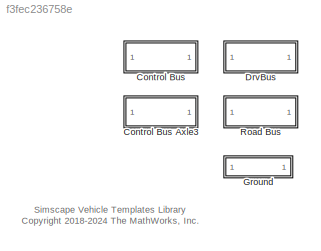
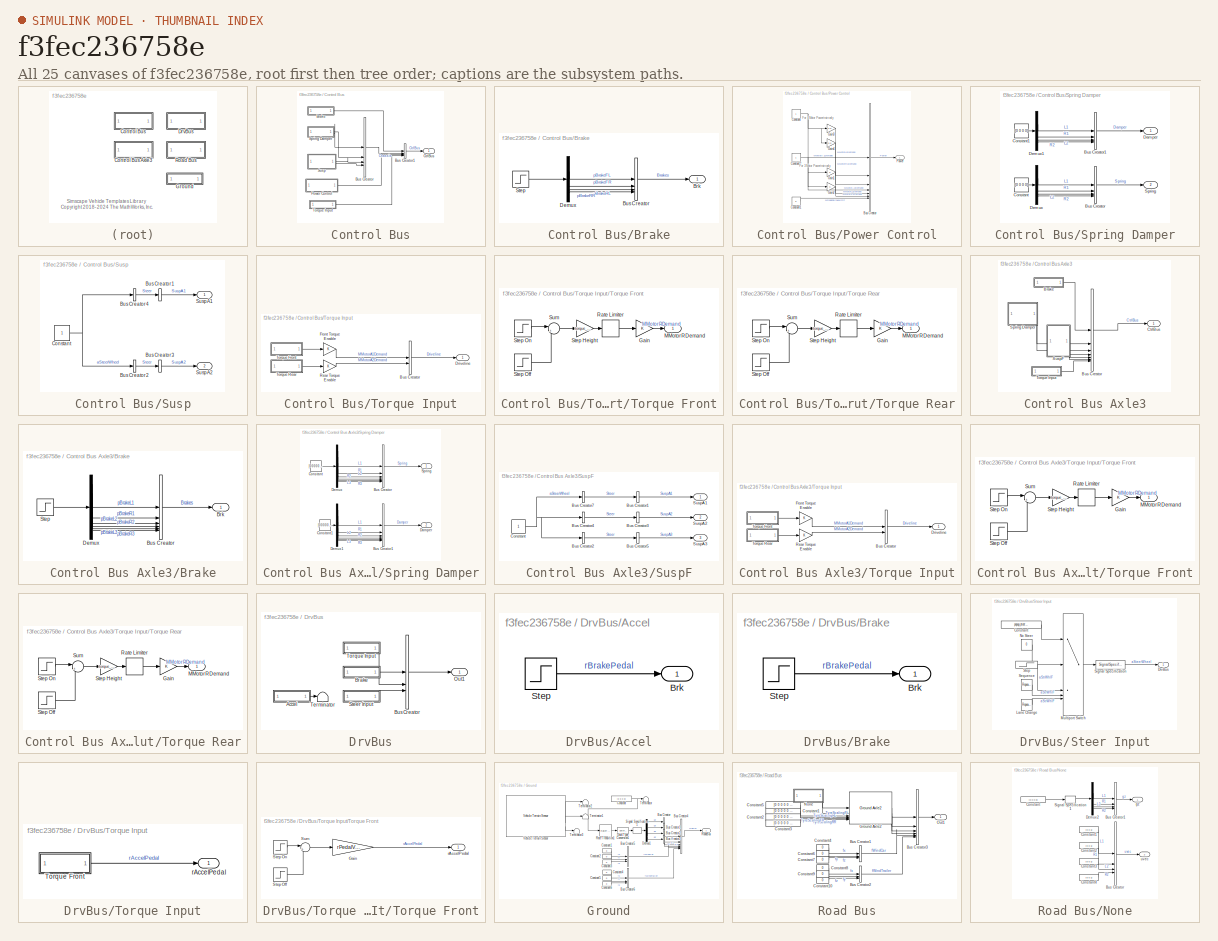
[diagram: thumbnail index - all 25 canvases of the model, root first then tree order]
MODEL slx_f3fec236758e
KIND library
CONFIG AbsTol = auto
CONFIG EnableMultiTasking = off
CONFIG FixedStep = auto
CONFIG MaxStep = auto
CONFIG MinStep = auto
CONFIG RelTol = 1e-3
CONFIG SampleTimeConstraint = Unconstrained
CONFIG SolverName = VariableStepAuto
CONFIG StartTime = 0.0
CONFIG StopTime = 10.0
BLOCK [SubSystem] Control Bus
BLOCK [SubSystem] Control Bus Axle3
BLOCK [SubSystem] Control Bus Axle3/Brake
BLOCK [Outport] Control Bus Axle3/Brake/Brk
  VectorParamsAs1DForOutWhenUnconnected = off
BLOCK [BusCreator] Control Bus Axle3/Brake/Bus Creator
  DisplayOption = bar
  InheritFromInputs = on
  Inputs = 6
BLOCK [Demux] Control Bus Axle3/Brake/Demux
  Outputs = 6
BLOCK [Step] Control Bus Axle3/Brake/Step
  After = [1 1 1 1 1 1]
  SampleTime = 0
  Time = brake_on_time
  ZeroCross = off
BLOCK [BusCreator] Control Bus Axle3/Bus Creator
  DisplayOption = bar
  InheritFromInputs = on
  Inputs = 7
BLOCK [Outport] Control Bus Axle3/CtrlBus
  VectorParamsAs1DForOutWhenUnconnected = off
BLOCK [SubSystem] Control Bus Axle3/Spring Damper
BLOCK [BusCreator] Control Bus Axle3/Spring Damper/Bus Creator
  DisplayOption = bar
  InheritFromInputs = on
  Inputs = 6
BLOCK [BusCreator] Control Bus Axle3/Spring Damper/Bus Creator1
  DisplayOption = bar
  InheritFromInputs = on
  Inputs = 6
BLOCK [Constant] Control Bus Axle3/Spring Damper/Constant
  Value = [0 0 0 0 0 0]
BLOCK [Constant] Control Bus Axle3/Spring Damper/Constant1
  Value = [0 0 0 0 0 0]
BLOCK [Outport] Control Bus Axle3/Spring Damper/Damper
  Port = 2
  VectorParamsAs1DForOutWhenUnconnected = off
BLOCK [Demux] Control Bus Axle3/Spring Damper/Demux
  Outputs = 6
BLOCK [Demux] Control Bus Axle3/Spring Damper/Demux1
  Outputs = 6
BLOCK [Outport] Control Bus Axle3/Spring Damper/Spring
  VectorParamsAs1DForOutWhenUnconnected = off
BLOCK [SubSystem] Control Bus Axle3/SuspF
BLOCK [BusCreator] Control Bus Axle3/SuspF/Bus Creator1
  DisplayOption = bar
  InheritFromInputs = on
  Inputs = 1
BLOCK [BusCreator] Control Bus Axle3/SuspF/Bus Creator2
  DisplayOption = bar
  InheritFromInputs = on
  Inputs = 1
BLOCK [BusCreator] Control Bus Axle3/SuspF/Bus Creator3
  DisplayOption = bar
  InheritFromInputs = on
  Inputs = 1
BLOCK [BusCreator] Control Bus Axle3/SuspF/Bus Creator4
  DisplayOption = bar
  InheritFromInputs = on
  Inputs = 1
BLOCK [BusCreator] Control Bus Axle3/SuspF/Bus Creator5
  DisplayOption = bar
  InheritFromInputs = on
  Inputs = 1
BLOCK [BusCreator] Control Bus Axle3/SuspF/Bus Creator7
  DisplayOption = bar
  InheritFromInputs = on
  Inputs = 1
BLOCK [Constant] Control Bus Axle3/SuspF/Constant
BLOCK [Outport] Control Bus Axle3/SuspF/SuspA1
  VectorParamsAs1DForOutWhenUnconnected = off
BLOCK [Outport] Control Bus Axle3/SuspF/SuspA2
  Port = 2
  VectorParamsAs1DForOutWhenUnconnected = off
BLOCK [Outport] Control Bus Axle3/SuspF/SuspA3
  Port = 3
  VectorParamsAs1DForOutWhenUnconnected = off
BLOCK [SubSystem] Control Bus Axle3/Torque Input
BLOCK [BusCreator] Control Bus Axle3/Torque Input/Bus Creator
  DisplayOption = bar
  InheritFromInputs = on
  Inputs = 2
BLOCK [Outport] Control Bus Axle3/Torque Input/Driveline
  VectorParamsAs1DForOutWhenUnconnected = off
BLOCK [Gain] Control Bus Axle3/Torque Input/Front Torque Enable
BLOCK [Gain] Control Bus Axle3/Torque Input/Rear Torque Enable
BLOCK [SubSystem] Control Bus Axle3/Torque Input/Torque Front
BLOCK [Gain] Control Bus Axle3/Torque Input/Torque Front/Gain
BLOCK [Outport] Control Bus Axle3/Torque Input/Torque Front/MMotorRDemand
  VectorParamsAs1DForOutWhenUnconnected = off
BLOCK [RateLimiter] Control Bus Axle3/Torque Input/Torque Front/Rate Limiter
  FallingSlewLimit = -300
  RisingSlewLimit = 300
  SampleTimeMode = inherited
BLOCK [Gain] Control Bus Axle3/Torque Input/Torque Front/Step Height
  Gain = torque_value
BLOCK [Step] Control Bus Axle3/Torque Input/Torque Front/Step Off
  After = -1
  SampleTime = 0
  Time = off_time
  ZeroCross = off
BLOCK [Step] Control Bus Axle3/Torque Input/Torque Front/Step On
  SampleTime = 0
  Time = on_time
  ZeroCross = off
BLOCK [Sum] Control Bus Axle3/Torque Input/Torque Front/Sum
  Inputs = |++
BLOCK [SubSystem] Control Bus Axle3/Torque Input/Torque Rear
BLOCK [Gain] Control Bus Axle3/Torque Input/Torque Rear/Gain
BLOCK [Outport] Control Bus Axle3/Torque Input/Torque Rear/MMotorRDemand
  VectorParamsAs1DForOutWhenUnconnected = off
BLOCK [RateLimiter] Control Bus Axle3/Torque Input/Torque Rear/Rate Limiter
  FallingSlewLimit = -300
  RisingSlewLimit = 300
  SampleTimeMode = inherited
BLOCK [Gain] Control Bus Axle3/Torque Input/Torque Rear/Step Height
  Gain = torque_value
BLOCK [Step] Control Bus Axle3/Torque Input/Torque Rear/Step Off
  After = -1
  SampleTime = 0
  Time = off_time
  ZeroCross = off
BLOCK [Step] Control Bus Axle3/Torque Input/Torque Rear/Step On
  SampleTime = 0
  Time = on_time
  ZeroCross = off
BLOCK [Sum] Control Bus Axle3/Torque Input/Torque Rear/Sum
  Inputs = |++
BLOCK [SubSystem] Control Bus/Brake
BLOCK [Outport] Control Bus/Brake/Brk
  VectorParamsAs1DForOutWhenUnconnected = off
BLOCK [BusCreator] Control Bus/Brake/Bus Creator
  DisplayOption = bar
  InheritFromInputs = on
  Inputs = 4
BLOCK [Demux] Control Bus/Brake/Demux
BLOCK [Step] Control Bus/Brake/Step
  After = [1 1 1 1]
  SampleTime = 0
  Time = brake_on_time
  ZeroCross = off
BLOCK [BusCreator] Control Bus/Bus Creator
  DisplayOption = bar
  InheritFromInputs = on
  Inputs = 4
BLOCK [BusCreator] Control Bus/Bus Creator1
  DisplayOption = bar
  InheritFromInputs = on
  Inputs = 4
BLOCK [Outport] Control Bus/CtrlBus
  VectorParamsAs1DForOutWhenUnconnected = off
BLOCK [SubSystem] Control Bus/Power Control
BLOCK [BusCreator] Control Bus/Power Control/Bus Creator
  DisplayOption = bar
  InheritFromInputs = on
  Inputs = 7
BLOCK [Constant] Control Bus/Power Control/Constant
BLOCK [Constant] Control Bus/Power Control/Constant1
  Value = 0
BLOCK [Constant] Control Bus/Power Control/Constant2
BLOCK [Gain] Control Bus/Power Control/Gain1
BLOCK [Gain] Control Bus/Power Control/Gain2
BLOCK [Gain] Control Bus/Power Control/Gain3
  Gain = 0.5
BLOCK [Gain] Control Bus/Power Control/Gain4
  Gain = 0.5
BLOCK [Outport] Control Bus/Power Control/Power
  VectorParamsAs1DForOutWhenUnconnected = off
BLOCK [SubSystem] Control Bus/Spring Damper
BLOCK [BusCreator] Control Bus/Spring Damper/Bus Creator
  DisplayOption = bar
  InheritFromInputs = on
  Inputs = 4
BLOCK [BusCreator] Control Bus/Spring Damper/Bus Creator1
  DisplayOption = bar
  InheritFromInputs = on
  Inputs = 4
BLOCK [Constant] Control Bus/Spring Damper/Constant
  Value = [0 0 0 0]
BLOCK [Constant] Control Bus/Spring Damper/Constant1
  Value = [0 0 0 0]
BLOCK [Outport] Control Bus/Spring Damper/Damper
  VectorParamsAs1DForOutWhenUnconnected = off
BLOCK [Demux] Control Bus/Spring Damper/Demux
BLOCK [Demux] Control Bus/Spring Damper/Demux1
BLOCK [Outport] Control Bus/Spring Damper/Spring
  Port = 2
  VectorParamsAs1DForOutWhenUnconnected = off
BLOCK [SubSystem] Control Bus/Susp
BLOCK [BusCreator] Control Bus/Susp/Bus Creator1
  DisplayOption = bar
  InheritFromInputs = on
  Inputs = 1
BLOCK [BusCreator] Control Bus/Susp/Bus Creator2
  DisplayOption = bar
  InheritFromInputs = on
  Inputs = 1
BLOCK [BusCreator] Control Bus/Susp/Bus Creator3
  DisplayOption = bar
  InheritFromInputs = on
  Inputs = 1
BLOCK [BusCreator] Control Bus/Susp/Bus Creator4
  DisplayOption = bar
  InheritFromInputs = on
  Inputs = 1
BLOCK [Constant] Control Bus/Susp/Constant
BLOCK [Outport] Control Bus/Susp/SuspA1
  VectorParamsAs1DForOutWhenUnconnected = off
BLOCK [Outport] Control Bus/Susp/SuspA2
  Port = 2
  VectorParamsAs1DForOutWhenUnconnected = off
BLOCK [SubSystem] Control Bus/Torque Input
BLOCK [BusCreator] Control Bus/Torque Input/Bus Creator
  DisplayOption = bar
  InheritFromInputs = on
  Inputs = 2
BLOCK [Outport] Control Bus/Torque Input/Driveline
  VectorParamsAs1DForOutWhenUnconnected = off
BLOCK [Gain] Control Bus/Torque Input/Front Torque Enable
BLOCK [Gain] Control Bus/Torque Input/Rear Torque Enable
BLOCK [SubSystem] Control Bus/Torque Input/Torque Front
BLOCK [Gain] Control Bus/Torque Input/Torque Front/Gain
BLOCK [Outport] Control Bus/Torque Input/Torque Front/MMotorRDemand
  VectorParamsAs1DForOutWhenUnconnected = off
BLOCK [RateLimiter] Control Bus/Torque Input/Torque Front/Rate Limiter
  FallingSlewLimit = -300
  RisingSlewLimit = 300
  SampleTimeMode = inherited
BLOCK [Gain] Control Bus/Torque Input/Torque Front/Step Height
  Gain = torque_value
BLOCK [Step] Control Bus/Torque Input/Torque Front/Step Off
  After = -1
  SampleTime = 0
  Time = off_time
  ZeroCross = off
BLOCK [Step] Control Bus/Torque Input/Torque Front/Step On
  SampleTime = 0
  Time = on_time
  ZeroCross = off
BLOCK [Sum] Control Bus/Torque Input/Torque Front/Sum
  Inputs = |++
BLOCK [SubSystem] Control Bus/Torque Input/Torque Rear
BLOCK [Gain] Control Bus/Torque Input/Torque Rear/Gain
BLOCK [Outport] Control Bus/Torque Input/Torque Rear/MMotorRDemand
  VectorParamsAs1DForOutWhenUnconnected = off
BLOCK [RateLimiter] Control Bus/Torque Input/Torque Rear/Rate Limiter
  FallingSlewLimit = -300
  RisingSlewLimit = 300
  SampleTimeMode = inherited
BLOCK [Gain] Control Bus/Torque Input/Torque Rear/Step Height
  Gain = torque_value
BLOCK [Step] Control Bus/Torque Input/Torque Rear/Step Off
  After = -1
  SampleTime = 0
  Time = off_time
  ZeroCross = off
BLOCK [Step] Control Bus/Torque Input/Torque Rear/Step On
  SampleTime = 0
  Time = on_time
  ZeroCross = off
BLOCK [Sum] Control Bus/Torque Input/Torque Rear/Sum
  Inputs = |++
BLOCK [SubSystem] DrvBus
BLOCK [SubSystem] DrvBus/Accel
BLOCK [Outport] DrvBus/Accel/Brk
  VectorParamsAs1DForOutWhenUnconnected = off
BLOCK [Step] DrvBus/Accel/Step
  After = [1 1 1 1]
  SampleTime = 0
  Time = brake_on_time
  ZeroCross = off
BLOCK [SubSystem] DrvBus/Brake
BLOCK [Outport] DrvBus/Brake/Brk
  VectorParamsAs1DForOutWhenUnconnected = off
BLOCK [Step] DrvBus/Brake/Step
  SampleTime = 0
  Time = brake_on_time
  ZeroCross = off
BLOCK [BusCreator] DrvBus/Bus Creator
  DisplayOption = bar
  InheritFromInputs = on
  Inputs = 3
BLOCK [Outport] DrvBus/Out1
  VectorParamsAs1DForOutWhenUnconnected = off
BLOCK [SubSystem] DrvBus/Steer Input
BLOCK [Constant] DrvBus/Steer Input/Constant
  Value = popup_steer_input
BLOCK [Outport] DrvBus/Steer Input/DrvBus
  VectorParamsAs1DForOutWhenUnconnected = off
BLOCK [Reference] DrvBus/Steer Input/Lane Change  REF=simulink/Sources/Repeating
Sequence
  SourceBlock = simulink/Sources/Repeating\nSequence
  SourceType = Repeating table
BLOCK [MultiPortSwitch] DrvBus/Steer Input/Multiport Switch
  InputSameDT = off
  Inputs = 4
  SaturateOnIntegerOverflow = off
BLOCK [Constant] DrvBus/Steer Input/No Steer
  Value = 0
BLOCK [Reference] DrvBus/Steer Input/Sequence  REF=simulink/Sources/Repeating
Sequence
  SourceBlock = simulink/Sources/Repeating\nSequence
  SourceType = Repeating table
BLOCK [SignalSpecification] DrvBus/Steer Input/Signal Specification
  Unit = rad
BLOCK [Step] DrvBus/Steer Input/Step
  After = 5*pi/180
  AttributesFormatString = %<After> @ %<Time> sec
  SampleTime = 0
  Time = 5
  ZeroCross = off
BLOCK [Terminator] DrvBus/Terminator
BLOCK [SubSystem] DrvBus/Torque Input
BLOCK [SubSystem] DrvBus/Torque Input/Torque Front
BLOCK [Gain] DrvBus/Torque Input/Torque Front/Gain
  Gain = rPedalValue
BLOCK [Step] DrvBus/Torque Input/Torque Front/Step Off
  After = -1
  SampleTime = 0
  Time = off_time
  ZeroCross = off
BLOCK [Step] DrvBus/Torque Input/Torque Front/Step On
  SampleTime = 0
  Time = on_time
  ZeroCross = off
BLOCK [Sum] DrvBus/Torque Input/Torque Front/Sum
  Inputs = |++
BLOCK [Outport] DrvBus/Torque Input/Torque Front/rAccelPedal
  VectorParamsAs1DForOutWhenUnconnected = off
BLOCK [Outport] DrvBus/Torque Input/rAccelPedal
  VectorParamsAs1DForOutWhenUnconnected = off
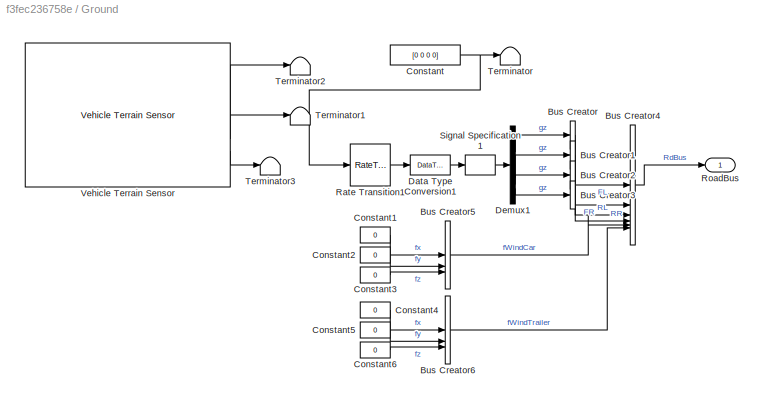
BLOCK [SubSystem] Ground
BLOCK [BusCreator] Ground/Bus Creator
  DisplayOption = bar
  InheritFromInputs = on
  Inputs = 1
BLOCK [BusCreator] Ground/Bus Creator1
  DisplayOption = bar
  InheritFromInputs = on
  Inputs = 1
BLOCK [BusCreator] Ground/Bus Creator2
  DisplayOption = bar
  InheritFromInputs = on
  Inputs = 1
BLOCK [BusCreator] Ground/Bus Creator3
  DisplayOption = bar
  InheritFromInputs = on
  Inputs = 1
BLOCK [BusCreator] Ground/Bus Creator4
  DisplayOption = bar
  InheritFromInputs = on
  Inputs = 6
BLOCK [BusCreator] Ground/Bus Creator5
  DisplayOption = bar
  InheritFromInputs = on
  Inputs = 3
BLOCK [BusCreator] Ground/Bus Creator6
  DisplayOption = bar
  InheritFromInputs = on
  Inputs = 3
BLOCK [Constant] Ground/Constant
  Value = [0 0 0 0]
BLOCK [Constant] Ground/Constant1
  Value = 0
BLOCK [Constant] Ground/Constant2
  Value = 0
BLOCK [Constant] Ground/Constant3
  Value = 0
BLOCK [Constant] Ground/Constant4
  Value = 0
BLOCK [Constant] Ground/Constant5
  Value = 0
BLOCK [Constant] Ground/Constant6
  Value = 0
BLOCK [DataTypeConversion] Ground/Data Type Conversion1
  RndMeth = Floor
  SaturateOnIntegerOverflow = off
BLOCK [Demux] Ground/Demux1
BLOCK [RateTransition] Ground/Rate Transition1
BLOCK [Outport] Ground/RoadBus
  VectorParamsAs1DForOutWhenUnconnected = off
BLOCK [SignalSpecification] Ground/Signal Specification1
  Unit = m
BLOCK [Terminator] Ground/Terminator
BLOCK [Terminator] Ground/Terminator1
  Commented = on
BLOCK [Terminator] Ground/Terminator2
  Commented = on
BLOCK [Terminator] Ground/Terminator3
  Commented = on
BLOCK [Reference] Ground/Vehicle Terrain Sensor  REF=sim3dlib/Vehicle Terrain Sensor
  Commented = on
  SourceBlock = sim3dlib/Vehicle Terrain Sensor
  SourceType = Vehicle Terrain Sensor
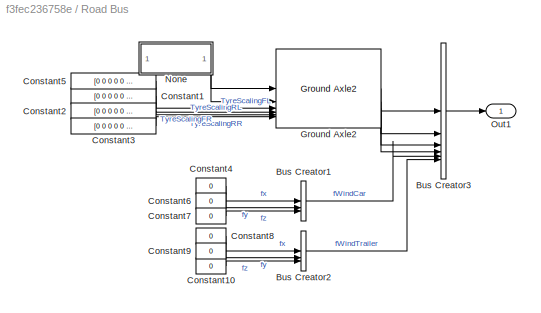
BLOCK [SubSystem] Road Bus
BLOCK [BusCreator] Road Bus/Bus Creator1
  DisplayOption = bar
  InheritFromInputs = on
  Inputs = 3
BLOCK [BusCreator] Road Bus/Bus Creator2
  DisplayOption = bar
  InheritFromInputs = on
  Inputs = 3
BLOCK [BusCreator] Road Bus/Bus Creator3
  DisplayOption = bar
  InheritFromInputs = on
  Inputs = 6
BLOCK [Constant] Road Bus/Constant1
  Value = [0 0 0 0 0 0 0 0]
BLOCK [Constant] Road Bus/Constant10
  Value = 0
BLOCK [Constant] Road Bus/Constant2
  Value = [0 0 0 0 0 0 0 0]
BLOCK [Constant] Road Bus/Constant3
  Value = [0 0 0 0 0 0 0 0]
BLOCK [Constant] Road Bus/Constant4
  Value = 0
BLOCK [Constant] Road Bus/Constant5
  Value = [0 0 0 0 0 0 0 0]
BLOCK [Constant] Road Bus/Constant6
  Value = 0
BLOCK [Constant] Road Bus/Constant7
  Value = 0
BLOCK [Constant] Road Bus/Constant8
  Value = 0
BLOCK [Constant] Road Bus/Constant9
  Value = 0
BLOCK [Reference] Road Bus/Ground Axle2  REF=Tire_Utilities/Ground Axle2
  SourceBlock = Tire_Utilities/Ground Axle2
  SourceType = SubSystem
BLOCK [SubSystem] Road Bus/None
  NameLocation = top
  VariantControl = None
BLOCK [BusCreator] Road Bus/None/Bus Creator
  DisplayOption = bar
  InheritFromInputs = on
  Inputs = 4
BLOCK [BusCreator] Road Bus/None/Bus Creator1
  DisplayOption = bar
  InheritFromInputs = on
  Inputs = 4
BLOCK [Constant] Road Bus/None/Constant
  Value = [0 0 0 0]
BLOCK [Constant] Road Bus/None/Constant1
  Value = [0 0 1]
BLOCK [Constant] Road Bus/None/Constant2
  Value = [0 0 1]
BLOCK [Constant] Road Bus/None/Constant3
  Value = [0 0 1]
BLOCK [Constant] Road Bus/None/Constant4
  Value = [0 0 1]
BLOCK [Demux] Road Bus/None/Demux2
BLOCK [SignalSpecification] Road Bus/None/Signal Specification1
  Unit = m
BLOCK [Outport] Road Bus/None/gz
  VectorParamsAs1DForOutWhenUnconnected = off
BLOCK [Outport] Road Bus/None/uvec
  Port = 2
  VectorParamsAs1DForOutWhenUnconnected = off
BLOCK [Outport] Road Bus/Out1
  VectorParamsAs1DForOutWhenUnconnected = off
ANNOTATION (root): Simscape Vehicle Templates Library <copyright redacted>
ANNOTATION Control Bus/Power Control: For 3 Motor Powertrain only
ANNOTATION Control Bus/Power Control: For 4 Motor Powertrain only
LINE Control Bus Axle3/Brake/Bus Creator:1 -> Control Bus Axle3/Brake/Brk:1
LINE Control Bus Axle3/Brake/Demux:1 -> Control Bus Axle3/Brake/Bus Creator:1
LINE Control Bus Axle3/Brake/Demux:2 -> Control Bus Axle3/Brake/Bus Creator:2
LINE Control Bus Axle3/Brake/Demux:3 -> Control Bus Axle3/Brake/Bus Creator:3
LINE Control Bus Axle3/Brake/Demux:4 -> Control Bus Axle3/Brake/Bus Creator:4
LINE Control Bus Axle3/Brake/Demux:5 -> Control Bus Axle3/Brake/Bus Creator:5
LINE Control Bus Axle3/Brake/Demux:6 -> Control Bus Axle3/Brake/Bus Creator:6
LINE Control Bus Axle3/Brake/Step:1 -> Control Bus Axle3/Brake/Demux:1
LINE Control Bus Axle3/Brake:1 -> Control Bus Axle3/Bus Creator:1
LINE Control Bus Axle3/Bus Creator:1 -> Control Bus Axle3/CtrlBus:1
LINE Control Bus Axle3/Spring Damper/Bus Creator1:1 -> Control Bus Axle3/Spring Damper/Damper:1
LINE Control Bus Axle3/Spring Damper/Bus Creator:1 -> Control Bus Axle3/Spring Damper/Spring:1
LINE Control Bus Axle3/Spring Damper/Constant1:1 -> Control Bus Axle3/Spring Damper/Demux1:1
LINE Control Bus Axle3/Spring Damper/Constant:1 -> Control Bus Axle3/Spring Damper/Demux:1
LINE Control Bus Axle3/Spring Damper/Demux1:1 -> Control Bus Axle3/Spring Damper/Bus Creator1:1
LINE Control Bus Axle3/Spring Damper/Demux1:2 -> Control Bus Axle3/Spring Damper/Bus Creator1:2
LINE Control Bus Axle3/Spring Damper/Demux1:3 -> Control Bus Axle3/Spring Damper/Bus Creator1:3
LINE Control Bus Axle3/Spring Damper/Demux1:4 -> Control Bus Axle3/Spring Damper/Bus Creator1:4
LINE Control Bus Axle3/Spring Damper/Demux1:5 -> Control Bus Axle3/Spring Damper/Bus Creator1:5
LINE Control Bus Axle3/Spring Damper/Demux1:6 -> Control Bus Axle3/Spring Damper/Bus Creator1:6
LINE Control Bus Axle3/Spring Damper/Demux:1 -> Control Bus Axle3/Spring Damper/Bus Creator:1
LINE Control Bus Axle3/Spring Damper/Demux:2 -> Control Bus Axle3/Spring Damper/Bus Creator:2
LINE Control Bus Axle3/Spring Damper/Demux:3 -> Control Bus Axle3/Spring Damper/Bus Creator:3
LINE Control Bus Axle3/Spring Damper/Demux:4 -> Control Bus Axle3/Spring Damper/Bus Creator:4
LINE Control Bus Axle3/Spring Damper/Demux:5 -> Control Bus Axle3/Spring Damper/Bus Creator:5
LINE Control Bus Axle3/Spring Damper/Demux:6 -> Control Bus Axle3/Spring Damper/Bus Creator:6
LINE Control Bus Axle3/Spring Damper:1 -> Control Bus Axle3/Bus Creator:2
LINE Control Bus Axle3/Spring Damper:2 -> Control Bus Axle3/Bus Creator:3
LINE Control Bus Axle3/SuspF/Bus Creator1:1 -> Control Bus Axle3/SuspF/SuspA1:1
LINE Control Bus Axle3/SuspF/Bus Creator2:1 -> Control Bus Axle3/SuspF/Bus Creator5:1
LINE Control Bus Axle3/SuspF/Bus Creator3:1 -> Control Bus Axle3/SuspF/SuspA2:1
LINE Control Bus Axle3/SuspF/Bus Creator4:1 -> Control Bus Axle3/SuspF/Bus Creator3:1
LINE Control Bus Axle3/SuspF/Bus Creator5:1 -> Control Bus Axle3/SuspF/SuspA3:1
LINE Control Bus Axle3/SuspF/Bus Creator7:1 -> Control Bus Axle3/SuspF/Bus Creator1:1
NET Control Bus Axle3/SuspF/Constant:1 -> Control Bus Axle3/SuspF/Bus Creator2:1, Control Bus Axle3/SuspF/Bus Creator4:1, Control Bus Axle3/SuspF/Bus Creator7:1
LINE Control Bus Axle3/SuspF:1 -> Control Bus Axle3/Bus Creator:4
LINE Control Bus Axle3/SuspF:2 -> Control Bus Axle3/Bus Creator:5
LINE Control Bus Axle3/SuspF:3 -> Control Bus Axle3/Bus Creator:6
LINE Control Bus Axle3/Torque Input/Bus Creator:1 -> Control Bus Axle3/Torque Input/Driveline:1
LINE Control Bus Axle3/Torque Input/Front Torque Enable:1 -> Control Bus Axle3/Torque Input/Bus Creator:1
LINE Control Bus Axle3/Torque Input/Rear Torque Enable:1 -> Control Bus Axle3/Torque Input/Bus Creator:2
LINE Control Bus Axle3/Torque Input/Torque Front/Gain:1 -> Control Bus Axle3/Torque Input/Torque Front/MMotorRDemand:1
LINE Control Bus Axle3/Torque Input/Torque Front/Rate Limiter:1 -> Control Bus Axle3/Torque Input/Torque Front/Gain:1
LINE Control Bus Axle3/Torque Input/Torque Front/Step Height:1 -> Control Bus Axle3/Torque Input/Torque Front/Rate Limiter:1
LINE Control Bus Axle3/Torque Input/Torque Front/Step Off:1 -> Control Bus Axle3/Torque Input/Torque Front/Sum:2
LINE Control Bus Axle3/Torque Input/Torque Front/Step On:1 -> Control Bus Axle3/Torque Input/Torque Front/Sum:1
LINE Control Bus Axle3/Torque Input/Torque Front/Sum:1 -> Control Bus Axle3/Torque Input/Torque Front/Step Height:1
LINE Control Bus Axle3/Torque Input/Torque Front:1 -> Control Bus Axle3/Torque Input/Front Torque Enable:1
LINE Control Bus Axle3/Torque Input/Torque Rear/Gain:1 -> Control Bus Axle3/Torque Input/Torque Rear/MMotorRDemand:1
LINE Control Bus Axle3/Torque Input/Torque Rear/Rate Limiter:1 -> Control Bus Axle3/Torque Input/Torque Rear/Gain:1
LINE Control Bus Axle3/Torque Input/Torque Rear/Step Height:1 -> Control Bus Axle3/Torque Input/Torque Rear/Rate Limiter:1
LINE Control Bus Axle3/Torque Input/Torque Rear/Step Off:1 -> Control Bus Axle3/Torque Input/Torque Rear/Sum:2
LINE Control Bus Axle3/Torque Input/Torque Rear/Step On:1 -> Control Bus Axle3/Torque Input/Torque Rear/Sum:1
LINE Control Bus Axle3/Torque Input/Torque Rear/Sum:1 -> Control Bus Axle3/Torque Input/Torque Rear/Step Height:1
LINE Control Bus Axle3/Torque Input/Torque Rear:1 -> Control Bus Axle3/Torque Input/Rear Torque Enable:1
LINE Control Bus Axle3/Torque Input:1 -> Control Bus Axle3/Bus Creator:7
LINE Control Bus/Brake/Bus Creator:1 -> Control Bus/Brake/Brk:1
LINE Control Bus/Brake/Demux:1 -> Control Bus/Brake/Bus Creator:1
LINE Control Bus/Brake/Demux:2 -> Control Bus/Brake/Bus Creator:2
LINE Control Bus/Brake/Demux:3 -> Control Bus/Brake/Bus Creator:3
LINE Control Bus/Brake/Demux:4 -> Control Bus/Brake/Bus Creator:4
LINE Control Bus/Brake/Step:1 -> Control Bus/Brake/Demux:1
LINE Control Bus/Brake:1 -> Control Bus/Bus Creator1:1
LINE Control Bus/Bus Creator1:1 -> Control Bus/CtrlBus:1
LINE Control Bus/Bus Creator:1 -> Control Bus/Bus Creator1:2
LINE Control Bus/Power Control/Bus Creator:1 -> Control Bus/Power Control/Power:1
LINE Control Bus/Power Control/Constant1:1 -> Control Bus/Power Control/Bus Creator:7
NET Control Bus/Power Control/Constant2:1 -> Control Bus/Power Control/Bus Creator:4, Control Bus/Power Control/Gain1:1, Control Bus/Power Control/Gain2:1
NET Control Bus/Power Control/Constant:1 -> Control Bus/Power Control/Bus Creator:1, Control Bus/Power Control/Gain3:1, Control Bus/Power Control/Gain4:1
LINE Control Bus/Power Control/Gain1:1 -> Control Bus/Power Control/Bus Creator:5
LINE Control Bus/Power Control/Gain2:1 -> Control Bus/Power Control/Bus Creator:6
LINE Control Bus/Power Control/Gain3:1 -> Control Bus/Power Control/Bus Creator:2
LINE Control Bus/Power Control/Gain4:1 -> Control Bus/Power Control/Bus Creator:3
LINE Control Bus/Power Control:1 -> Control Bus/Bus Creator1:3
LINE Control Bus/Spring Damper/Bus Creator1:1 -> Control Bus/Spring Damper/Damper:1
LINE Control Bus/Spring Damper/Bus Creator:1 -> Control Bus/Spring Damper/Spring:1
LINE Control Bus/Spring Damper/Constant1:1 -> Control Bus/Spring Damper/Demux1:1
LINE Control Bus/Spring Damper/Constant:1 -> Control Bus/Spring Damper/Demux:1
LINE Control Bus/Spring Damper/Demux1:1 -> Control Bus/Spring Damper/Bus Creator1:1
LINE Control Bus/Spring Damper/Demux1:2 -> Control Bus/Spring Damper/Bus Creator1:2
LINE Control Bus/Spring Damper/Demux1:3 -> Control Bus/Spring Damper/Bus Creator1:3
LINE Control Bus/Spring Damper/Demux1:4 -> Control Bus/Spring Damper/Bus Creator1:4
LINE Control Bus/Spring Damper/Demux:1 -> Control Bus/Spring Damper/Bus Creator:1
LINE Control Bus/Spring Damper/Demux:2 -> Control Bus/Spring Damper/Bus Creator:2
LINE Control Bus/Spring Damper/Demux:3 -> Control Bus/Spring Damper/Bus Creator:3
LINE Control Bus/Spring Damper/Demux:4 -> Control Bus/Spring Damper/Bus Creator:4
LINE Control Bus/Spring Damper:1 -> Control Bus/Bus Creator:2
LINE Control Bus/Spring Damper:2 -> Control Bus/Bus Creator:1
LINE Control Bus/Susp/Bus Creator1:1 -> Control Bus/Susp/SuspA1:1
LINE Control Bus/Susp/Bus Creator2:1 -> Control Bus/Susp/Bus Creator3:1
LINE Control Bus/Susp/Bus Creator3:1 -> Control Bus/Susp/SuspA2:1
LINE Control Bus/Susp/Bus Creator4:1 -> Control Bus/Susp/Bus Creator1:1
NET Control Bus/Susp/Constant:1 -> Control Bus/Susp/Bus Creator2:1, Control Bus/Susp/Bus Creator4:1
LINE Control Bus/Susp:1 -> Control Bus/Bus Creator:3
LINE Control Bus/Susp:2 -> Control Bus/Bus Creator:4
LINE Control Bus/Torque Input/Bus Creator:1 -> Control Bus/Torque Input/Driveline:1
LINE Control Bus/Torque Input/Front Torque Enable:1 -> Control Bus/Torque Input/Bus Creator:1
LINE Control Bus/Torque Input/Rear Torque Enable:1 -> Control Bus/Torque Input/Bus Creator:2
LINE Control Bus/Torque Input/Torque Front/Gain:1 -> Control Bus/Torque Input/Torque Front/MMotorRDemand:1
LINE Control Bus/Torque Input/Torque Front/Rate Limiter:1 -> Control Bus/Torque Input/Torque Front/Gain:1
LINE Control Bus/Torque Input/Torque Front/Step Height:1 -> Control Bus/Torque Input/Torque Front/Rate Limiter:1
LINE Control Bus/Torque Input/Torque Front/Step Off:1 -> Control Bus/Torque Input/Torque Front/Sum:2
LINE Control Bus/Torque Input/Torque Front/Step On:1 -> Control Bus/Torque Input/Torque Front/Sum:1
LINE Control Bus/Torque Input/Torque Front/Sum:1 -> Control Bus/Torque Input/Torque Front/Step Height:1
LINE Control Bus/Torque Input/Torque Front:1 -> Control Bus/Torque Input/Front Torque Enable:1
LINE Control Bus/Torque Input/Torque Rear/Gain:1 -> Control Bus/Torque Input/Torque Rear/MMotorRDemand:1
LINE Control Bus/Torque Input/Torque Rear/Rate Limiter:1 -> Control Bus/Torque Input/Torque Rear/Gain:1
LINE Control Bus/Torque Input/Torque Rear/Step Height:1 -> Control Bus/Torque Input/Torque Rear/Rate Limiter:1
LINE Control Bus/Torque Input/Torque Rear/Step Off:1 -> Control Bus/Torque Input/Torque Rear/Sum:2
LINE Control Bus/Torque Input/Torque Rear/Step On:1 -> Control Bus/Torque Input/Torque Rear/Sum:1
LINE Control Bus/Torque Input/Torque Rear/Sum:1 -> Control Bus/Torque Input/Torque Rear/Step Height:1
LINE Control Bus/Torque Input/Torque Rear:1 -> Control Bus/Torque Input/Rear Torque Enable:1
LINE Control Bus/Torque Input:1 -> Control Bus/Bus Creator1:4
LINE DrvBus/Accel/Step:1 -> DrvBus/Accel/Brk:1
LINE DrvBus/Accel:1 -> DrvBus/Terminator:1
LINE DrvBus/Brake/Step:1 -> DrvBus/Brake/Brk:1
LINE DrvBus/Brake:1 -> DrvBus/Bus Creator:2
LINE DrvBus/Bus Creator:1 -> DrvBus/Out1:1
LINE DrvBus/Steer Input/Constant:1 -> DrvBus/Steer Input/Multiport Switch:1
LINE DrvBus/Steer Input/Lane Change:1 -> DrvBus/Steer Input/Multiport Switch:5
LINE DrvBus/Steer Input/Multiport Switch:1 -> DrvBus/Steer Input/Signal Specification:1
LINE DrvBus/Steer Input/No Steer:1 -> DrvBus/Steer Input/Multiport Switch:2
LINE DrvBus/Steer Input/Sequence:1 -> DrvBus/Steer Input/Multiport Switch:4
LINE DrvBus/Steer Input/Signal Specification:1 -> DrvBus/Steer Input/DrvBus:1
LINE DrvBus/Steer Input/Step:1 -> DrvBus/Steer Input/Multiport Switch:3
LINE DrvBus/Steer Input:1 -> DrvBus/Bus Creator:3
LINE DrvBus/Torque Input/Torque Front/Gain:1 -> DrvBus/Torque Input/Torque Front/rAccelPedal:1
LINE DrvBus/Torque Input/Torque Front/Step Off:1 -> DrvBus/Torque Input/Torque Front/Sum:2
LINE DrvBus/Torque Input/Torque Front/Step On:1 -> DrvBus/Torque Input/Torque Front/Sum:1
LINE DrvBus/Torque Input/Torque Front/Sum:1 -> DrvBus/Torque Input/Torque Front/Gain:1
LINE DrvBus/Torque Input/Torque Front:1 -> DrvBus/Torque Input/rAccelPedal:1
LINE DrvBus/Torque Input:1 -> DrvBus/Bus Creator:1
LINE Ground/Bus Creator1:1 -> Ground/Bus Creator4:2
LINE Ground/Bus Creator2:1 -> Ground/Bus Creator4:3
LINE Ground/Bus Creator3:1 -> Ground/Bus Creator4:4
LINE Ground/Bus Creator4:1 -> Ground/RoadBus:1
LINE Ground/Bus Creator5:1 -> Ground/Bus Creator4:5
LINE Ground/Bus Creator6:1 -> Ground/Bus Creator4:6
LINE Ground/Bus Creator:1 -> Ground/Bus Creator4:1
LINE Ground/Constant1:1 -> Ground/Bus Creator5:1
LINE Ground/Constant2:1 -> Ground/Bus Creator5:2
LINE Ground/Constant3:1 -> Ground/Bus Creator5:3
LINE Ground/Constant4:1 -> Ground/Bus Creator6:1
LINE Ground/Constant5:1 -> Ground/Bus Creator6:2
LINE Ground/Constant6:1 -> Ground/Bus Creator6:3
NET Ground/Constant:1 -> Ground/Rate Transition1:1, Ground/Terminator:1
LINE Ground/Data Type Conversion1:1 -> Ground/Signal Specification1:1
LINE Ground/Demux1:1 -> Ground/Bus Creator:1
LINE Ground/Demux1:2 -> Ground/Bus Creator1:1
LINE Ground/Demux1:3 -> Ground/Bus Creator2:1
LINE Ground/Demux1:4 -> Ground/Bus Creator3:1
LINE Ground/Rate Transition1:1 -> Ground/Data Type Conversion1:1
LINE Ground/Signal Specification1:1 -> Ground/Demux1:1
LINE Ground/Vehicle Terrain Sensor:1 -> Ground/Terminator2:1
LINE Ground/Vehicle Terrain Sensor:2 -> Ground/Terminator1:1
LINE Ground/Vehicle Terrain Sensor:3 -> Ground/Terminator3:1
LINE Road Bus/Bus Creator1:1 -> Road Bus/Bus Creator3:5
LINE Road Bus/Bus Creator2:1 -> Road Bus/Bus Creator3:6
LINE Road Bus/Bus Creator3:1 -> Road Bus/Out1:1
LINE Road Bus/Constant10:1 -> Road Bus/Bus Creator2:3
LINE Road Bus/Constant1:1 -> Road Bus/Ground Axle2:4
LINE Road Bus/Constant2:1 -> Road Bus/Ground Axle2:5
LINE Road Bus/Constant3:1 -> Road Bus/Ground Axle2:6
LINE Road Bus/Constant4:1 -> Road Bus/Bus Creator1:1
LINE Road Bus/Constant5:1 -> Road Bus/Ground Axle2:3
LINE Road Bus/Constant6:1 -> Road Bus/Bus Creator1:2
LINE Road Bus/Constant7:1 -> Road Bus/Bus Creator1:3
LINE Road Bus/Constant8:1 -> Road Bus/Bus Creator2:1
LINE Road Bus/Constant9:1 -> Road Bus/Bus Creator2:2
LINE Road Bus/Ground Axle2:1 -> Road Bus/Bus Creator3:1
LINE Road Bus/Ground Axle2:2 -> Road Bus/Bus Creator3:2
LINE Road Bus/Ground Axle2:3 -> Road Bus/Bus Creator3:3
LINE Road Bus/Ground Axle2:4 -> Road Bus/Bus Creator3:4
LINE Road Bus/None/Bus Creator1:1 -> Road Bus/None/gz:1
LINE Road Bus/None/Bus Creator:1 -> Road Bus/None/uvec:1
LINE Road Bus/None/Constant1:1 -> Road Bus/None/Bus Creator:1
LINE Road Bus/None/Constant2:1 -> Road Bus/None/Bus Creator:2
LINE Road Bus/None/Constant3:1 -> Road Bus/None/Bus Creator:3
LINE Road Bus/None/Constant4:1 -> Road Bus/None/Bus Creator:4
LINE Road Bus/None/Constant:1 -> Road Bus/None/Signal Specification1:1
LINE Road Bus/None/Demux2:1 -> Road Bus/None/Bus Creator1:1
LINE Road Bus/None/Demux2:2 -> Road Bus/None/Bus Creator1:2
LINE Road Bus/None/Demux2:3 -> Road Bus/None/Bus Creator1:3
LINE Road Bus/None/Demux2:4 -> Road Bus/None/Bus Creator1:4
LINE Road Bus/None/Signal Specification1:1 -> Road Bus/None/Demux2:1
LINE Road Bus/None:1 -> Road Bus/Ground Axle2:1
LINE Road Bus/None:2 -> Road Bus/Ground Axle2:2
note: NET lines group one-source signal fan-out (src -> all destinations, sorted); 1:1 wires keep LINE
